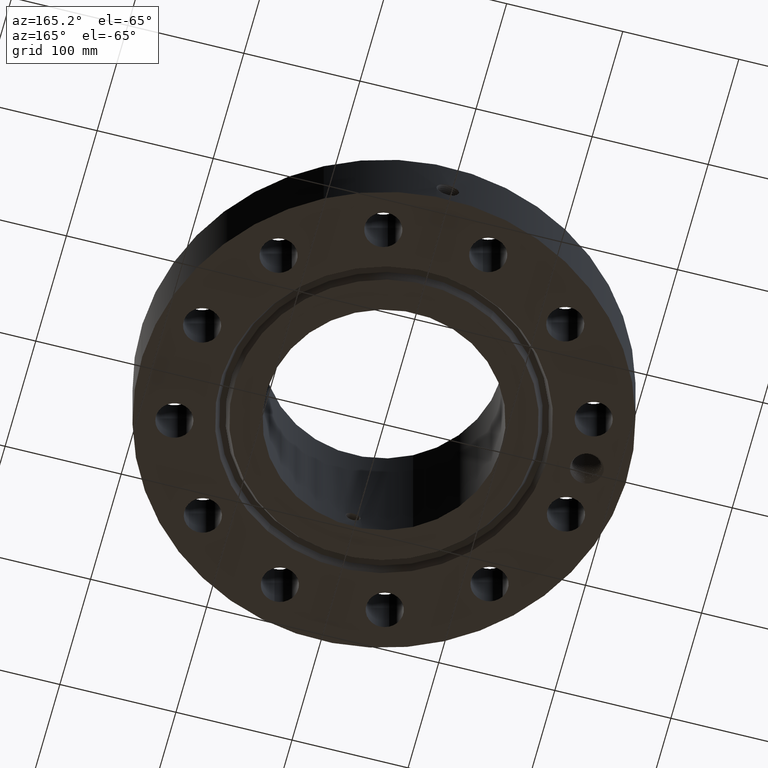
[diagram: clean part render]
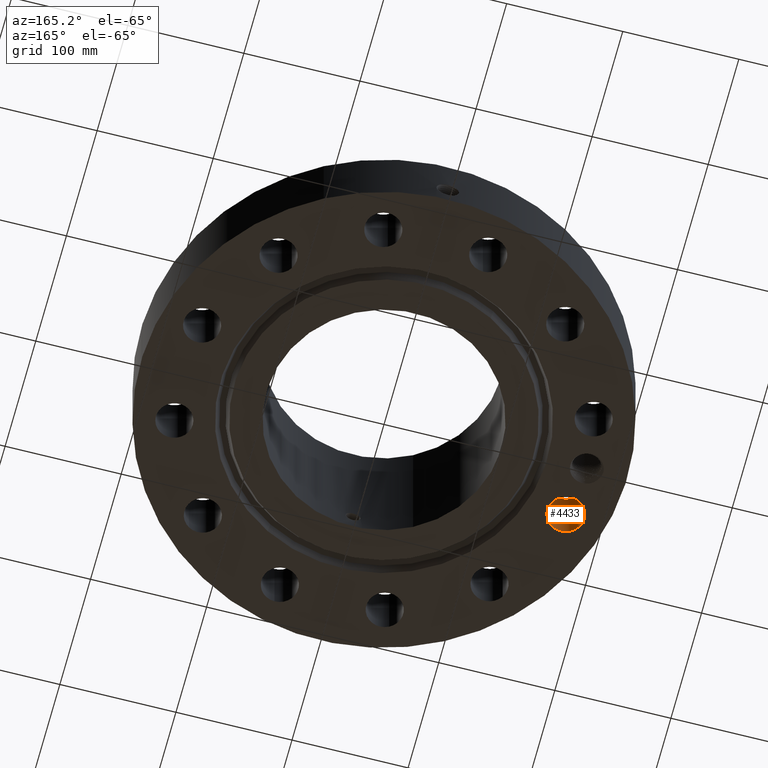
[diagram: same view with one face highlighted and labeled with its STEP entity id]
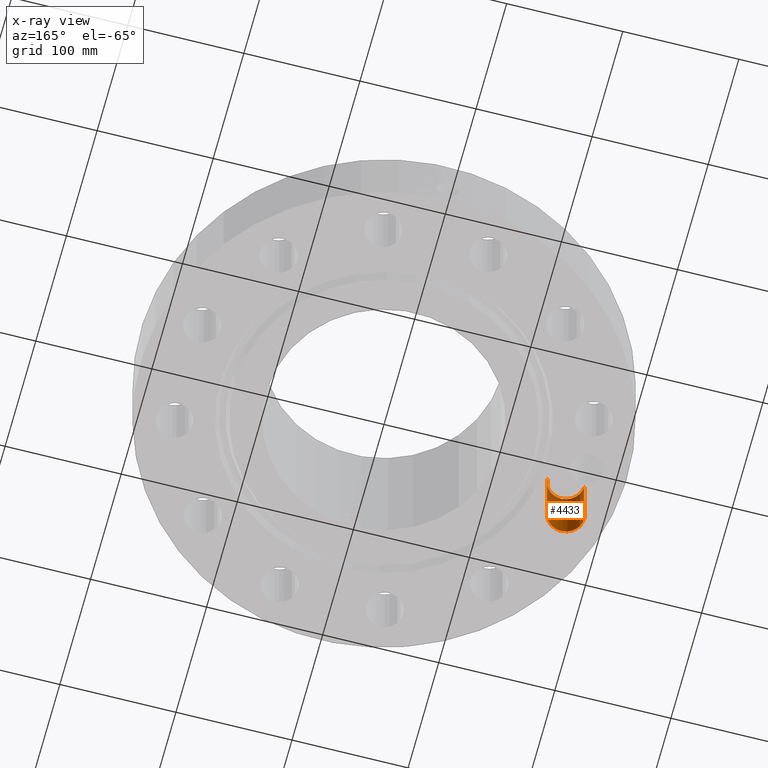
[diagram: x-ray of the same camera — body ghosted, the highlighted face saturated]
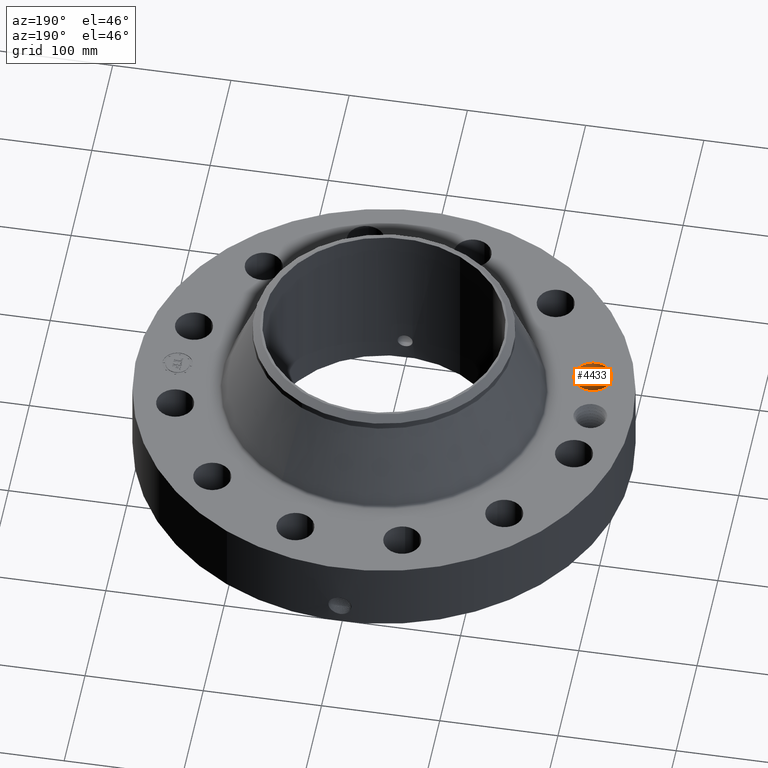
[diagram: same view with one face highlighted and labeled with its STEP entity id]
A machine part, auxiliary view. The second image highlights one B-rep face of the part: STEP entity #4433.
The next image is the same camera in x-ray: the body ghosted, the highlighted face saturated — about 5% of this face is hidden behind the body in this view.
A second angle (auxiliary view) of the same face is appended — the face is thin or edge-on in the first view.
In plain terms, the highlighted cylindrical surface (edge-blend (fillet) strip) has radius 15.875 mm, axis along (-0, 0, -1).
Its self-contained STEP definition (entity closure, byte-faithful):
#3093=AXIS2_PLACEMENT_3D('Circle Axis2P3D',#3091,#3092,$) ;
#4406=AXIS2_PLACEMENT_3D('Cylinder Axis2P3D',#4403,#4404,#4405) ;
#4417=AXIS2_PLACEMENT_3D('Circle Axis2P3D',#4415,#4416,$) ;
#3086=CARTESIAN_POINT('Vertex',(-7.2655660319,-1.79412880089,2.50200000001)) ;
#3088=CARTESIAN_POINT('Vertex',(-6.01591407963,-1.76463306928,2.50200000001)) ;
#3091=CARTESIAN_POINT('Axis2P3D Location',(-6.64074005576,-1.77938093509,2.50200000001)) ;
#4403=CARTESIAN_POINT('Axis2P3D Location',(-6.64074005576,-1.77938093509,2.49806299214)) ;
#4408=CARTESIAN_POINT('Line Origine',(-6.01591407963,-1.76463306928,1.25100000001)) ;
#4412=CARTESIAN_POINT('Vertex',(-6.01591407963,-1.76463306928,0.)) ;
#4415=CARTESIAN_POINT('Axis2P3D Location',(-6.64074005576,-1.77938093509,0.)) ;
#4419=CARTESIAN_POINT('Vertex',(-7.2655660319,-1.79412880089,0.)) ;
#4422=CARTESIAN_POINT('Line Origine',(-7.2655660319,-1.79412880089,1.25100000001)) ;
#3092=DIRECTION('Axis2P3D Direction',(0.,0.,-0.0393700787402)) ;
#4404=DIRECTION('Axis2P3D Direction',(-0.,0.,-0.0393700787402)) ;
#4405=DIRECTION('Axis2P3D XDirection',(-0.039359116607,-0.000928999420902,0.)) ;
#4409=DIRECTION('Vector Direction',(0.,0.,-0.0393700787402)) ;
#4416=DIRECTION('Axis2P3D Direction',(-0.,0.,-0.0393700787402)) ;
#4423=DIRECTION('Vector Direction',(0.,0.,-0.0393700787402)) ;
#4410=VECTOR('Line Direction',#4409,0.0393700787402) ;
#4424=VECTOR('Line Direction',#4423,0.0393700787402) ;
#4428=ORIENTED_EDGE('',*,*,#4414,.F.) ;
#4429=ORIENTED_EDGE('',*,*,#4421,.T.) ;
#4430=ORIENTED_EDGE('',*,*,#4426,.T.) ;
#4431=ORIENTED_EDGE('',*,*,#3095,.F.) ;
#4433=ADVANCED_FACE('PartBody',(#4432),#4407,.F.) ;
#3094=CIRCLE('generated circle',#3093,0.625000000003) ;
#4418=CIRCLE('generated circle',#4417,0.625000000003) ;
#4407=CYLINDRICAL_SURFACE('generated cylinder',#4406,0.625000000003) ;
#3095=EDGE_CURVE('',#3089,#3087,#3094,.T.) ;
#4414=EDGE_CURVE('',#4413,#3089,#4411,.F.) ;
#4421=EDGE_CURVE('',#4413,#4420,#4418,.T.) ;
#4426=EDGE_CURVE('',#4420,#3087,#4425,.F.) ;
#4427=EDGE_LOOP('',(#4428,#4429,#4430,#4431)) ;
#4432=FACE_OUTER_BOUND('',#4427,.T.) ;
#4411=LINE('Line',#4408,#4410) ;
#4425=LINE('Line',#4422,#4424) ;
#3087=VERTEX_POINT('',#3086) ;
#3089=VERTEX_POINT('',#3088) ;
#4413=VERTEX_POINT('',#4412) ;
#4420=VERTEX_POINT('',#4419) ;